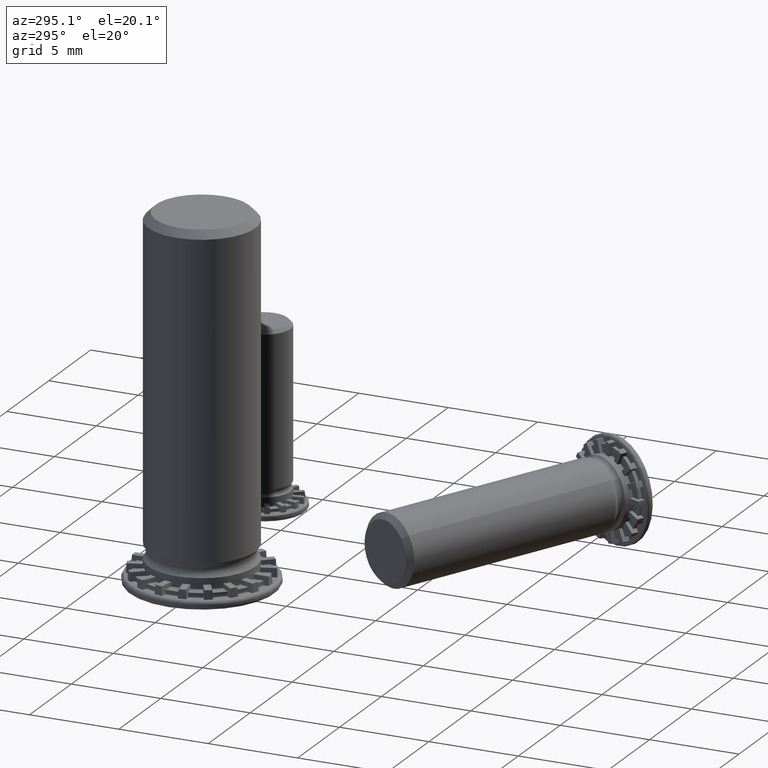
[diagram: clean part render]
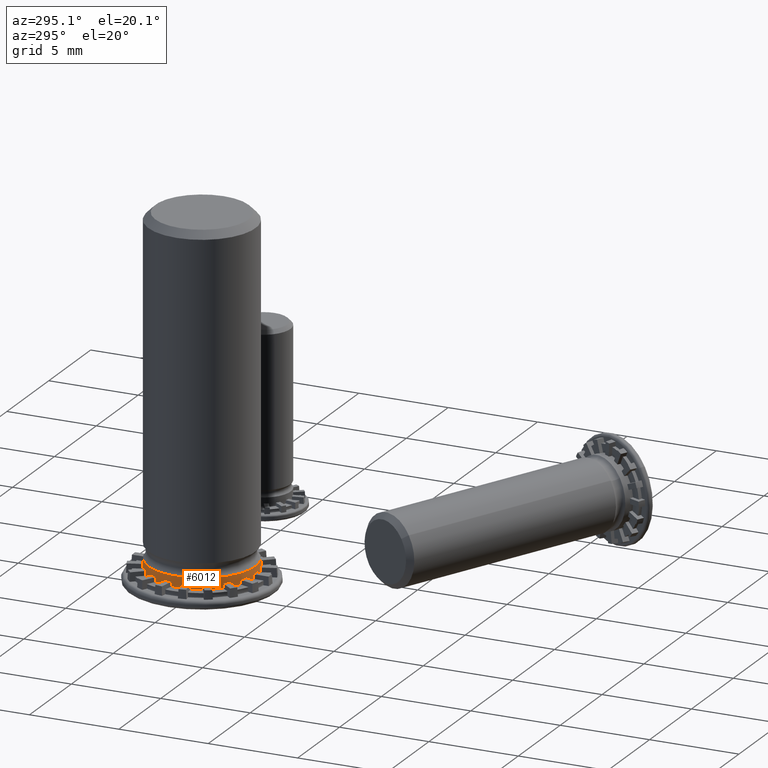
[diagram: same view with one face highlighted and labeled with its STEP entity id]
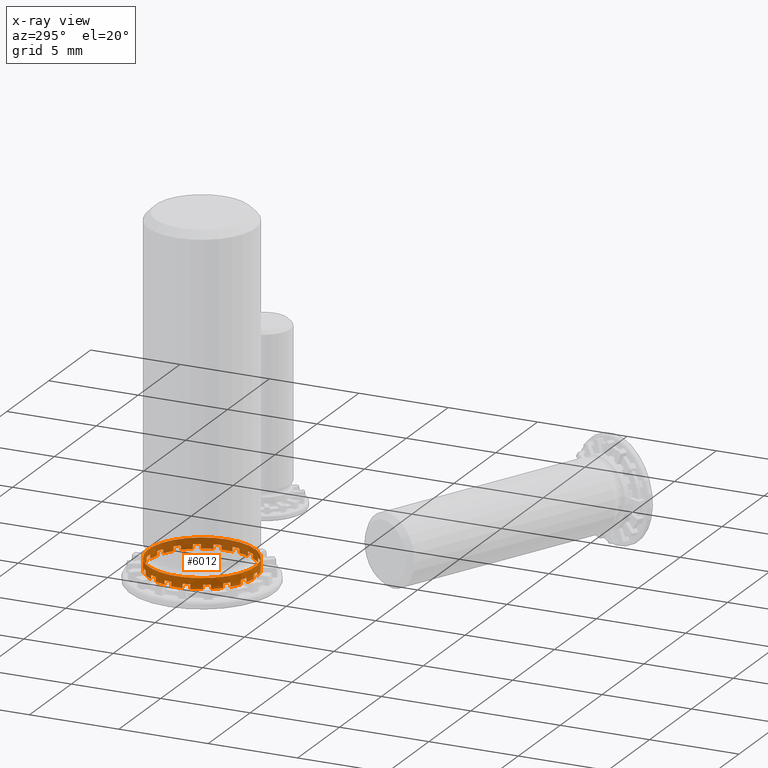
[diagram: x-ray of the same camera — body ghosted, the highlighted face saturated]
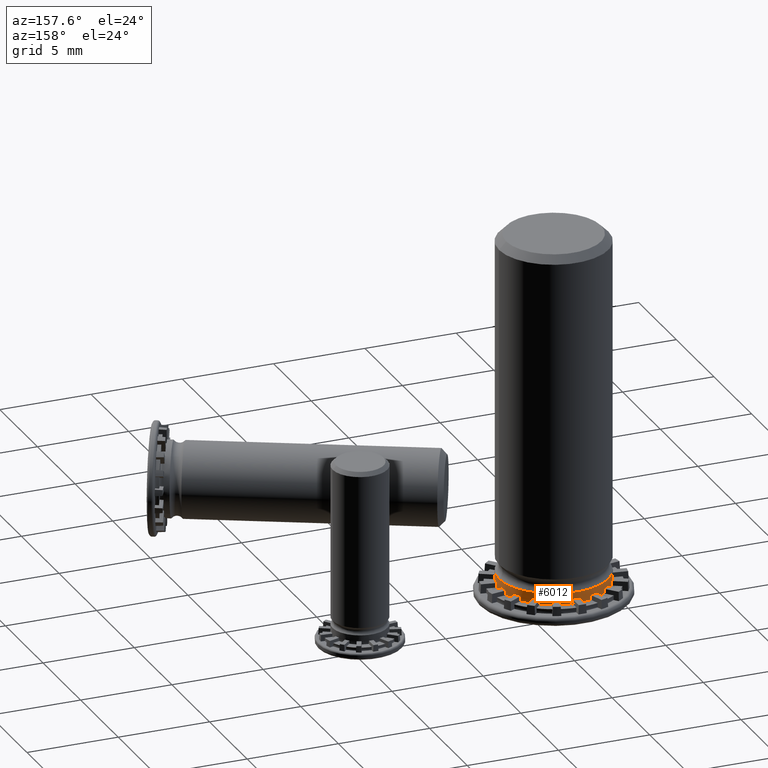
[diagram: same view with one face highlighted and labeled with its STEP entity id]
A machine part, auxiliary view. The second image highlights one B-rep face of the part: STEP entity #6012.
The next image is the same camera in x-ray: the body ghosted, the highlighted face saturated — about 39% of this face is hidden behind the body in this view.
A second angle (auxiliary view) of the same face is appended — the face is thin or edge-on in the first view.
In plain terms, the highlighted cylindrical surface (bore or boss wall) has radius 3 mm, axis along (0, 0, -1).
Its self-contained STEP definition (entity closure, byte-faithful):
#63=FACE_BOUND('',#1170,.T.);
#127=CYLINDRICAL_SURFACE('',#6859,3.);
#340=CIRCLE('',#6590,3.);
#343=CIRCLE('',#6601,3.);
#346=CIRCLE('',#6612,3.);
#349=CIRCLE('',#6623,3.);
#352=CIRCLE('',#6634,3.);
#355=CIRCLE('',#6645,3.);
#358=CIRCLE('',#6656,3.);
#361=CIRCLE('',#6667,3.);
#364=CIRCLE('',#6678,3.);
#367=CIRCLE('',#6689,3.);
#370=CIRCLE('',#6700,3.);
#373=CIRCLE('',#6711,3.);
#376=CIRCLE('',#6722,3.);
#379=CIRCLE('',#6733,3.);
#382=CIRCLE('',#6744,3.);
#385=CIRCLE('',#6755,3.);
#388=CIRCLE('',#6766,3.);
#425=CIRCLE('',#6824,3.);
#426=CIRCLE('',#6826,3.);
#427=CIRCLE('',#6828,3.);
#428=CIRCLE('',#6830,3.);
#429=CIRCLE('',#6832,3.);
#430=CIRCLE('',#6834,3.);
#431=CIRCLE('',#6836,3.);
#432=CIRCLE('',#6838,3.);
#433=CIRCLE('',#6840,3.);
#434=CIRCLE('',#6842,3.);
#435=CIRCLE('',#6844,3.);
#436=CIRCLE('',#6846,3.);
#437=CIRCLE('',#6848,3.);
#438=CIRCLE('',#6850,3.);
#439=CIRCLE('',#6852,3.);
#440=CIRCLE('',#6854,3.);
#441=CIRCLE('',#6856,3.);
#442=CIRCLE('',#6858,3.);
#443=CIRCLE('',#6860,3.);
#444=CIRCLE('',#6862,3.);
#823=FACE_OUTER_BOUND('',#1169,.T.);
#1169=EDGE_LOOP('',(#5307));
#1170=EDGE_LOOP('',(#5308,#5309,#5310,#5311,#5312,#5313,#5314,#5315,#5316,
#5317,#5318,#5319,#5320,#5321,#5322,#5323,#5324,#5325,#5326,#5327,#5328,
#5329,#5330,#5331,#5332,#5333,#5334,#5335,#5336,#5337,#5338,#5339,#5340,
#5341,#5342,#5343,#5344,#5345,#5346,#5347,#5348,#5349,#5350,#5351,#5352,
#5353,#5354,#5355,#5356,#5357,#5358,#5359,#5360,#5361,#5362,#5363,#5364,
#5365,#5366,#5367,#5368,#5369,#5370,#5371,#5372,#5373,#5374,#5375,#5376,
#5377,#5378,#5379));
#1319=ELLIPSE('',#6581,57.3219678278921,3.);
#1322=ELLIPSE('',#6588,57.3219678278927,3.);
#1323=ELLIPSE('',#6592,57.3219678278921,3.);
#1326=ELLIPSE('',#6599,57.3219678278927,3.);
#1327=ELLIPSE('',#6603,57.3219678278922,3.);
#1330=ELLIPSE('',#6610,57.3219678278926,3.);
#1331=ELLIPSE('',#6614,57.3219678278923,3.);
#1334=ELLIPSE('',#6621,57.3219678278925,3.);
#1335=ELLIPSE('',#6625,57.3219678278925,3.);
#1338=ELLIPSE('',#6632,57.3219678278923,3.);
#1339=ELLIPSE('',#6636,57.3219678278926,3.);
#1342=ELLIPSE('',#6643,57.3219678278922,3.);
#1343=ELLIPSE('',#6647,57.3219678278927,3.);
#1346=ELLIPSE('',#6654,57.3219678278921,3.);
#1347=ELLIPSE('',#6658,57.3219678278927,3.);
#1350=ELLIPSE('',#6665,57.3219678278921,3.);
#1351=ELLIPSE('',#6669,57.3219678278927,3.);
#1354=ELLIPSE('',#6676,57.3219678278921,3.);
#1355=ELLIPSE('',#6680,57.3219678278927,3.);
#1358=ELLIPSE('',#6687,57.3219678278921,3.);
#1359=ELLIPSE('',#6691,57.3219678278927,3.);
#1362=ELLIPSE('',#6698,57.3219678278921,3.);
#1363=ELLIPSE('',#6702,57.3219678278926,3.);
#1366=ELLIPSE('',#6709,57.3219678278922,3.);
#1367=ELLIPSE('',#6713,57.3219678278925,3.);
#1370=ELLIPSE('',#6720,57.3219678278923,3.);
#1371=ELLIPSE('',#6724,57.3219678278923,3.);
#1374=ELLIPSE('',#6731,57.3219678278925,3.);
#1375=ELLIPSE('',#6735,57.3219678278922,3.);
#1378=ELLIPSE('',#6742,57.3219678278926,3.);
#1379=ELLIPSE('',#6746,57.3219678278921,3.);
#1382=ELLIPSE('',#6753,57.3219678278927,3.);
#1383=ELLIPSE('',#6757,57.3219678278921,3.);
#1386=ELLIPSE('',#6764,57.3219678278927,3.);
#1389=ELLIPSE('',#6861,57.3219678278921,3.);
#1390=ELLIPSE('',#6863,57.3219678278927,3.);
#2494=VERTEX_POINT('',#10255);
#2495=VERTEX_POINT('',#10257);
#2501=VERTEX_POINT('',#10275);
#2502=VERTEX_POINT('',#10277);
#2506=VERTEX_POINT('',#10290);
#2507=VERTEX_POINT('',#10292);
#2513=VERTEX_POINT('',#10310);
#2514=VERTEX_POINT('',#10312);
#2518=VERTEX_POINT('',#10325);
#2519=VERTEX_POINT('',#10327);
#2525=VERTEX_POINT('',#10345);
#2526=VERTEX_POINT('',#10347);
#2530=VERTEX_POINT('',#10360);
#2531=VERTEX_POINT('',#10362);
#2537=VERTEX_POINT('',#10380);
#2538=VERTEX_POINT('',#10382);
#2542=VERTEX_POINT('',#10395);
#2543=VERTEX_POINT('',#10397);
#2549=VERTEX_POINT('',#10415);
#2550=VERTEX_POINT('',#10417);
#2554=VERTEX_POINT('',#10430);
#2555=VERTEX_POINT('',#10432);
#2561=VERTEX_POINT('',#10450);
#2562=VERTEX_POINT('',#10452);
#2566=VERTEX_POINT('',#10465);
#2567=VERTEX_POINT('',#10467);
#2573=VERTEX_POINT('',#10485);
#2574=VERTEX_POINT('',#10487);
#2578=VERTEX_POINT('',#10500);
#2579=VERTEX_POINT('',#10502);
#2585=VERTEX_POINT('',#10520);
#2586=VERTEX_POINT('',#10522);
#2590=VERTEX_POINT('',#10535);
#2591=VERTEX_POINT('',#10537);
#2597=VERTEX_POINT('',#10555);
#2598=VERTEX_POINT('',#10557);
#2602=VERTEX_POINT('',#10570);
#2603=VERTEX_POINT('',#10572);
#2609=VERTEX_POINT('',#10590);
#2610=VERTEX_POINT('',#10592);
#2614=VERTEX_POINT('',#10605);
#2615=VERTEX_POINT('',#10607);
#2621=VERTEX_POINT('',#10625);
#2622=VERTEX_POINT('',#10627);
#2626=VERTEX_POINT('',#10640);
#2627=VERTEX_POINT('',#10642);
#2633=VERTEX_POINT('',#10660);
#2634=VERTEX_POINT('',#10662);
#2638=VERTEX_POINT('',#10675);
#2639=VERTEX_POINT('',#10677);
#2645=VERTEX_POINT('',#10695);
#2646=VERTEX_POINT('',#10697);
#2650=VERTEX_POINT('',#10710);
#2651=VERTEX_POINT('',#10712);
#2657=VERTEX_POINT('',#10730);
#2658=VERTEX_POINT('',#10732);
#2662=VERTEX_POINT('',#10745);
#2663=VERTEX_POINT('',#10747);
#2669=VERTEX_POINT('',#10765);
#2670=VERTEX_POINT('',#10767);
#2674=VERTEX_POINT('',#10780);
#2675=VERTEX_POINT('',#10782);
#2681=VERTEX_POINT('',#10800);
#2682=VERTEX_POINT('',#10802);
#2686=VERTEX_POINT('',#10815);
#2687=VERTEX_POINT('',#10817);
#2693=VERTEX_POINT('',#10835);
#2694=VERTEX_POINT('',#10837);
#2699=VERTEX_POINT('',#10903);
#2700=VERTEX_POINT('',#10937);
#2701=VERTEX_POINT('',#10943);
#2702=VERTEX_POINT('',#10945);
#2703=VERTEX_POINT('',#10947);
#3310=EDGE_CURVE('',#2495,#2494,#1319,.T.);
#3319=EDGE_CURVE('',#2502,#2501,#1322,.T.);
#3321=EDGE_CURVE('',#2494,#2502,#340,.T.);
#3325=EDGE_CURVE('',#2507,#2506,#1323,.T.);
#3334=EDGE_CURVE('',#2514,#2513,#1326,.T.);
#3336=EDGE_CURVE('',#2506,#2514,#343,.T.);
#3340=EDGE_CURVE('',#2519,#2518,#1327,.T.);
#3349=EDGE_CURVE('',#2526,#2525,#1330,.T.);
#3351=EDGE_CURVE('',#2518,#2526,#346,.T.);
#3355=EDGE_CURVE('',#2531,#2530,#1331,.T.);
#3364=EDGE_CURVE('',#2538,#2537,#1334,.T.);
#3366=EDGE_CURVE('',#2530,#2538,#349,.T.);
#3370=EDGE_CURVE('',#2543,#2542,#1335,.T.);
#3379=EDGE_CURVE('',#2550,#2549,#1338,.T.);
#3381=EDGE_CURVE('',#2542,#2550,#352,.T.);
#3385=EDGE_CURVE('',#2555,#2554,#1339,.T.);
#3394=EDGE_CURVE('',#2562,#2561,#1342,.T.);
#3396=EDGE_CURVE('',#2554,#2562,#355,.T.);
#3400=EDGE_CURVE('',#2567,#2566,#1343,.T.);
#3409=EDGE_CURVE('',#2574,#2573,#1346,.T.);
#3411=EDGE_CURVE('',#2566,#2574,#358,.T.);
#3415=EDGE_CURVE('',#2579,#2578,#1347,.T.);
#3424=EDGE_CURVE('',#2586,#2585,#1350,.T.);
#3426=EDGE_CURVE('',#2578,#2586,#361,.T.);
#3430=EDGE_CURVE('',#2591,#2590,#1351,.T.);
#3439=EDGE_CURVE('',#2598,#2597,#1354,.T.);
#3441=EDGE_CURVE('',#2590,#2598,#364,.T.);
#3445=EDGE_CURVE('',#2603,#2602,#1355,.T.);
#3454=EDGE_CURVE('',#2610,#2609,#1358,.T.);
#3456=EDGE_CURVE('',#2602,#2610,#367,.T.);
#3460=EDGE_CURVE('',#2615,#2614,#1359,.T.);
#3469=EDGE_CURVE('',#2622,#2621,#1362,.T.);
#3471=EDGE_CURVE('',#2614,#2622,#370,.T.);
#3475=EDGE_CURVE('',#2627,#2626,#1363,.T.);
#3484=EDGE_CURVE('',#2634,#2633,#1366,.T.);
#3486=EDGE_CURVE('',#2626,#2634,#373,.T.);
#3490=EDGE_CURVE('',#2639,#2638,#1367,.T.);
#3499=EDGE_CURVE('',#2646,#2645,#1370,.T.);
#3501=EDGE_CURVE('',#2638,#2646,#376,.T.);
#3505=EDGE_CURVE('',#2651,#2650,#1371,.T.);
#3514=EDGE_CURVE('',#2658,#2657,#1374,.T.);
#3516=EDGE_CURVE('',#2650,#2658,#379,.T.);
#3520=EDGE_CURVE('',#2663,#2662,#1375,.T.);
#3529=EDGE_CURVE('',#2670,#2669,#1378,.T.);
#3531=EDGE_CURVE('',#2662,#2670,#382,.T.);
#3535=EDGE_CURVE('',#2675,#2674,#1379,.T.);
#3544=EDGE_CURVE('',#2682,#2681,#1382,.T.);
#3546=EDGE_CURVE('',#2674,#2682,#385,.T.);
#3550=EDGE_CURVE('',#2687,#2686,#1383,.T.);
#3559=EDGE_CURVE('',#2694,#2693,#1386,.T.);
#3561=EDGE_CURVE('',#2686,#2694,#388,.T.);
#3600=EDGE_CURVE('',#2687,#2699,#425,.T.);
#3602=EDGE_CURVE('',#2675,#2693,#426,.T.);
#3603=EDGE_CURVE('',#2663,#2681,#427,.T.);
#3604=EDGE_CURVE('',#2651,#2669,#428,.T.);
#3605=EDGE_CURVE('',#2639,#2657,#429,.T.);
#3606=EDGE_CURVE('',#2627,#2645,#430,.T.);
#3607=EDGE_CURVE('',#2615,#2633,#431,.T.);
#3608=EDGE_CURVE('',#2603,#2621,#432,.T.);
#3609=EDGE_CURVE('',#2591,#2609,#433,.T.);
#3610=EDGE_CURVE('',#2579,#2597,#434,.T.);
#3611=EDGE_CURVE('',#2567,#2585,#435,.T.);
#3612=EDGE_CURVE('',#2555,#2573,#436,.T.);
#3613=EDGE_CURVE('',#2543,#2561,#437,.T.);
#3614=EDGE_CURVE('',#2531,#2549,#438,.T.);
#3615=EDGE_CURVE('',#2519,#2537,#439,.T.);
#3616=EDGE_CURVE('',#2507,#2525,#440,.T.);
#3618=EDGE_CURVE('',#2700,#2501,#441,.T.);
#3619=EDGE_CURVE('',#2495,#2513,#442,.T.);
#3620=EDGE_CURVE('',#2701,#2701,#443,.T.);
#3621=EDGE_CURVE('',#2700,#2702,#1389,.T.);
#3622=EDGE_CURVE('',#2702,#2703,#444,.T.);
#3623=EDGE_CURVE('',#2703,#2699,#1390,.T.);
#5307=ORIENTED_EDGE('',*,*,#3620,.T.);
#5308=ORIENTED_EDGE('',*,*,#3614,.F.);
#5309=ORIENTED_EDGE('',*,*,#3355,.T.);
#5310=ORIENTED_EDGE('',*,*,#3366,.T.);
#5311=ORIENTED_EDGE('',*,*,#3364,.T.);
#5312=ORIENTED_EDGE('',*,*,#3615,.F.);
#5313=ORIENTED_EDGE('',*,*,#3340,.T.);
#5314=ORIENTED_EDGE('',*,*,#3351,.T.);
#5315=ORIENTED_EDGE('',*,*,#3349,.T.);
#5316=ORIENTED_EDGE('',*,*,#3616,.F.);
#5317=ORIENTED_EDGE('',*,*,#3325,.T.);
#5318=ORIENTED_EDGE('',*,*,#3336,.T.);
#5319=ORIENTED_EDGE('',*,*,#3334,.T.);
#5320=ORIENTED_EDGE('',*,*,#3619,.F.);
#5321=ORIENTED_EDGE('',*,*,#3310,.T.);
#5322=ORIENTED_EDGE('',*,*,#3321,.T.);
#5323=ORIENTED_EDGE('',*,*,#3319,.T.);
#5324=ORIENTED_EDGE('',*,*,#3618,.F.);
#5325=ORIENTED_EDGE('',*,*,#3621,.T.);
#5326=ORIENTED_EDGE('',*,*,#3622,.T.);
#5327=ORIENTED_EDGE('',*,*,#3623,.T.);
#5328=ORIENTED_EDGE('',*,*,#3600,.F.);
#5329=ORIENTED_EDGE('',*,*,#3550,.T.);
#5330=ORIENTED_EDGE('',*,*,#3561,.T.);
#5331=ORIENTED_EDGE('',*,*,#3559,.T.);
#5332=ORIENTED_EDGE('',*,*,#3602,.F.);
#5333=ORIENTED_EDGE('',*,*,#3535,.T.);
#5334=ORIENTED_EDGE('',*,*,#3546,.T.);
#5335=ORIENTED_EDGE('',*,*,#3544,.T.);
#5336=ORIENTED_EDGE('',*,*,#3603,.F.);
#5337=ORIENTED_EDGE('',*,*,#3520,.T.);
#5338=ORIENTED_EDGE('',*,*,#3531,.T.);
#5339=ORIENTED_EDGE('',*,*,#3529,.T.);
#5340=ORIENTED_EDGE('',*,*,#3604,.F.);
#5341=ORIENTED_EDGE('',*,*,#3505,.T.);
#5342=ORIENTED_EDGE('',*,*,#3516,.T.);
#5343=ORIENTED_EDGE('',*,*,#3514,.T.);
#5344=ORIENTED_EDGE('',*,*,#3605,.F.);
#5345=ORIENTED_EDGE('',*,*,#3490,.T.);
#5346=ORIENTED_EDGE('',*,*,#3501,.T.);
#5347=ORIENTED_EDGE('',*,*,#3499,.T.);
#5348=ORIENTED_EDGE('',*,*,#3606,.F.);
#5349=ORIENTED_EDGE('',*,*,#3475,.T.);
#5350=ORIENTED_EDGE('',*,*,#3486,.T.);
#5351=ORIENTED_EDGE('',*,*,#3484,.T.);
#5352=ORIENTED_EDGE('',*,*,#3607,.F.);
#5353=ORIENTED_EDGE('',*,*,#3460,.T.);
#5354=ORIENTED_EDGE('',*,*,#3471,.T.);
#5355=ORIENTED_EDGE('',*,*,#3469,.T.);
#5356=ORIENTED_EDGE('',*,*,#3608,.F.);
#5357=ORIENTED_EDGE('',*,*,#3445,.T.);
#5358=ORIENTED_EDGE('',*,*,#3456,.T.);
#5359=ORIENTED_EDGE('',*,*,#3454,.T.);
#5360=ORIENTED_EDGE('',*,*,#3609,.F.);
#5361=ORIENTED_EDGE('',*,*,#3430,.T.);
#5362=ORIENTED_EDGE('',*,*,#3441,.T.);
#5363=ORIENTED_EDGE('',*,*,#3439,.T.);
#5364=ORIENTED_EDGE('',*,*,#3610,.F.);
#5365=ORIENTED_EDGE('',*,*,#3415,.T.);
#5366=ORIENTED_EDGE('',*,*,#3426,.T.);
#5367=ORIENTED_EDGE('',*,*,#3424,.T.);
#5368=ORIENTED_EDGE('',*,*,#3611,.F.);
#5369=ORIENTED_EDGE('',*,*,#3400,.T.);
#5370=ORIENTED_EDGE('',*,*,#3411,.T.);
#5371=ORIENTED_EDGE('',*,*,#3409,.T.);
#5372=ORIENTED_EDGE('',*,*,#3612,.F.);
#5373=ORIENTED_EDGE('',*,*,#3385,.T.);
#5374=ORIENTED_EDGE('',*,*,#3396,.T.);
#5375=ORIENTED_EDGE('',*,*,#3394,.T.);
#5376=ORIENTED_EDGE('',*,*,#3613,.F.);
#5377=ORIENTED_EDGE('',*,*,#3370,.T.);
#5378=ORIENTED_EDGE('',*,*,#3381,.T.);
#5379=ORIENTED_EDGE('',*,*,#3379,.T.);
#6012=ADVANCED_FACE('',(#823,#63),#127,.T.);
#6581=AXIS2_PLACEMENT_3D('',#10258,#8188,#8189);
#6588=AXIS2_PLACEMENT_3D('',#10278,#8205,#8206);
#6590=AXIS2_PLACEMENT_3D('',#10281,#8210,#8211);
#6592=AXIS2_PLACEMENT_3D('',#10293,#8216,#8217);
#6599=AXIS2_PLACEMENT_3D('',#10313,#8233,#8234);
#6601=AXIS2_PLACEMENT_3D('',#10316,#8238,#8239);
#6603=AXIS2_PLACEMENT_3D('',#10328,#8244,#8245);
#6610=AXIS2_PLACEMENT_3D('',#10348,#8261,#8262);
#6612=AXIS2_PLACEMENT_3D('',#10351,#8266,#8267);
#6614=AXIS2_PLACEMENT_3D('',#10363,#8272,#8273);
#6621=AXIS2_PLACEMENT_3D('',#10383,#8289,#8290);
#6623=AXIS2_PLACEMENT_3D('',#10386,#8294,#8295);
#6625=AXIS2_PLACEMENT_3D('',#10398,#8300,#8301);
#6632=AXIS2_PLACEMENT_3D('',#10418,#8317,#8318);
#6634=AXIS2_PLACEMENT_3D('',#10421,#8322,#8323);
#6636=AXIS2_PLACEMENT_3D('',#10433,#8328,#8329);
#6643=AXIS2_PLACEMENT_3D('',#10453,#8345,#8346);
#6645=AXIS2_PLACEMENT_3D('',#10456,#8350,#8351);
#6647=AXIS2_PLACEMENT_3D('',#10468,#8356,#8357);
#6654=AXIS2_PLACEMENT_3D('',#10488,#8373,#8374);
#6656=AXIS2_PLACEMENT_3D('',#10491,#8378,#8379);
#6658=AXIS2_PLACEMENT_3D('',#10503,#8384,#8385);
#6665=AXIS2_PLACEMENT_3D('',#10523,#8401,#8402);
#6667=AXIS2_PLACEMENT_3D('',#10526,#8406,#8407);
#6669=AXIS2_PLACEMENT_3D('',#10538,#8412,#8413);
#6676=AXIS2_PLACEMENT_3D('',#10558,#8429,#8430);
#6678=AXIS2_PLACEMENT_3D('',#10561,#8434,#8435);
#6680=AXIS2_PLACEMENT_3D('',#10573,#8440,#8441);
#6687=AXIS2_PLACEMENT_3D('',#10593,#8457,#8458);
#6689=AXIS2_PLACEMENT_3D('',#10596,#8462,#8463);
#6691=AXIS2_PLACEMENT_3D('',#10608,#8468,#8469);
#6698=AXIS2_PLACEMENT_3D('',#10628,#8485,#8486);
#6700=AXIS2_PLACEMENT_3D('',#10631,#8490,#8491);
#6702=AXIS2_PLACEMENT_3D('',#10643,#8496,#8497);
#6709=AXIS2_PLACEMENT_3D('',#10663,#8513,#8514);
#6711=AXIS2_PLACEMENT_3D('',#10666,#8518,#8519);
#6713=AXIS2_PLACEMENT_3D('',#10678,#8524,#8525);
#6720=AXIS2_PLACEMENT_3D('',#10698,#8541,#8542);
#6722=AXIS2_PLACEMENT_3D('',#10701,#8546,#8547);
#6724=AXIS2_PLACEMENT_3D('',#10713,#8552,#8553);
#6731=AXIS2_PLACEMENT_3D('',#10733,#8569,#8570);
#6733=AXIS2_PLACEMENT_3D('',#10736,#8574,#8575);
#6735=AXIS2_PLACEMENT_3D('',#10748,#8580,#8581);
#6742=AXIS2_PLACEMENT_3D('',#10768,#8597,#8598);
#6744=AXIS2_PLACEMENT_3D('',#10771,#8602,#8603);
#6746=AXIS2_PLACEMENT_3D('',#10783,#8608,#8609);
#6753=AXIS2_PLACEMENT_3D('',#10803,#8625,#8626);
#6755=AXIS2_PLACEMENT_3D('',#10806,#8630,#8631);
#6757=AXIS2_PLACEMENT_3D('',#10818,#8636,#8637);
#6764=AXIS2_PLACEMENT_3D('',#10838,#8653,#8654);
#6766=AXIS2_PLACEMENT_3D('',#10841,#8658,#8659);
#6824=AXIS2_PLACEMENT_3D('',#10904,#8774,#8775);
#6826=AXIS2_PLACEMENT_3D('',#10907,#8779,#8780);
#6828=AXIS2_PLACEMENT_3D('',#10909,#8783,#8784);
#6830=AXIS2_PLACEMENT_3D('',#10911,#8787,#8788);
#6832=AXIS2_PLACEMENT_3D('',#10913,#8791,#8792);
#6834=AXIS2_PLACEMENT_3D('',#10915,#8795,#8796);
#6836=AXIS2_PLACEMENT_3D('',#10917,#8799,#8800);
#6838=AXIS2_PLACEMENT_3D('',#10919,#8803,#8804);
#6840=AXIS2_PLACEMENT_3D('',#10921,#8807,#8808);
#6842=AXIS2_PLACEMENT_3D('',#10923,#8811,#8812);
#6844=AXIS2_PLACEMENT_3D('',#10925,#8815,#8816);
#6846=AXIS2_PLACEMENT_3D('',#10927,#8819,#8820);
#6848=AXIS2_PLACEMENT_3D('',#10929,#8823,#8824);
#6850=AXIS2_PLACEMENT_3D('',#10931,#8827,#8828);
#6852=AXIS2_PLACEMENT_3D('',#10933,#8831,#8832);
#6854=AXIS2_PLACEMENT_3D('',#10935,#8835,#8836);
#6856=AXIS2_PLACEMENT_3D('',#10939,#8840,#8841);
#6858=AXIS2_PLACEMENT_3D('',#10941,#8844,#8845);
#6859=AXIS2_PLACEMENT_3D('',#10942,#8846,#8847);
#6860=AXIS2_PLACEMENT_3D('',#10944,#8848,#8849);
#6861=AXIS2_PLACEMENT_3D('',#10946,#8850,#8851);
#6862=AXIS2_PLACEMENT_3D('',#10948,#8852,#8853);
#6863=AXIS2_PLACEMENT_3D('',#10949,#8854,#8855);
#8188=DIRECTION('center_axis',(0.938404804707738,-0.341551416606006,0.0523359562429437));
#8189=DIRECTION('ref_axis',(-0.0491797118832683,0.0178999512552977,0.998629534754574));
#8205=DIRECTION('center_axis',(-0.938404804707738,0.341551416606006,0.0523359562429437));
#8206=DIRECTION('ref_axis',(-0.0491797118832684,0.0178999512552975,-0.998629534754574));
#8210=DIRECTION('center_axis',(-1.93138508711091E-31,-1.62986697235477E-31,
1.));
#8211=DIRECTION('ref_axis',(-1.,3.14790076438061E-62,-1.93138508711091E-31));
#8216=DIRECTION('center_axis',(0.764994605833232,-0.641906691607274,0.0523359562429437));
#8217=DIRECTION('ref_axis',(-0.0400916684552248,0.0336409042140612,0.998629534754574));
#8233=DIRECTION('center_axis',(-0.764994605833232,0.641906691607274,0.0523359562429437));
#8234=DIRECTION('ref_axis',(-0.0400916684552251,0.0336409042140609,-0.998629534754574));
#8238=DIRECTION('center_axis',(-2.37235564974062E-31,-8.71001362473712E-32,
1.));
#8239=DIRECTION('ref_axis',(-1.,2.06632500319629E-62,-2.37235564974062E-31));
#8244=DIRECTION('center_axis',(0.499314767377287,-0.864838546066896,0.0523359562429437));
#8245=DIRECTION('ref_axis',(-0.0261679781214716,0.0453242676377402,0.998629534754574));
#8261=DIRECTION('center_axis',(-0.499314767377287,0.864838546066896,0.0523359562429437));
#8262=DIRECTION('ref_axis',(-0.0261679781214721,0.0453242676377399,-0.998629534754574));
#8266=DIRECTION('center_axis',(-2.52718510877113E-31,-7.08013366727255E-34,
1.));
#8267=DIRECTION('ref_axis',(-1.,1.78928083720403E-64,-2.52718510877113E-31));
#8272=DIRECTION('center_axis',(0.173410198874506,-0.983458108213279,0.0523359562429437));
#8273=DIRECTION('ref_axis',(-0.00908804342804305,0.0515408554693587,0.998629534754574));
#8289=DIRECTION('center_axis',(-0.173410198874506,0.983458108213279,0.0523359562429437));
#8290=DIRECTION('ref_axis',(-0.00908804342804366,0.0515408554693586,-0.998629534754574));
#8294=DIRECTION('center_axis',(-2.37719874640391E-31,8.57695063751086E-32,
1.));
#8295=DIRECTION('ref_axis',(-1.,-2.0389116303459E-62,-2.37719874640391E-31));
#8300=DIRECTION('center_axis',(-0.173410198874506,-0.983458108213279,0.0523359562429437));
#8301=DIRECTION('ref_axis',(-0.00908804342804368,-0.0515408554693585,-0.998629534754574));
#8317=DIRECTION('center_axis',(0.173410198874506,0.983458108213279,0.0523359562429437));
#8318=DIRECTION('ref_axis',(-0.00908804342804308,-0.0515408554693587,0.998629534754574));
#8322=DIRECTION('center_axis',(-1.9404871315034E-31,1.61901957825006E-31,
1.));
#8323=DIRECTION('ref_axis',(-1.,-3.1416866572463E-62,-1.9404871315034E-31));
#8328=DIRECTION('center_axis',(-0.499314767377287,-0.864838546066896,0.0523359562429437));
#8329=DIRECTION('ref_axis',(-0.0261679781214721,-0.0453242676377399,-0.998629534754574));
#8345=DIRECTION('center_axis',(0.499314767377287,0.864838546066896,0.0523359562429437));
#8346=DIRECTION('ref_axis',(-0.0261679781214716,-0.0453242676377402,0.998629534754574));
#8350=DIRECTION('center_axis',(-1.26972413000361E-31,2.18506643742791E-31,
1.));
#8351=DIRECTION('ref_axis',(-1.,-2.77443158126324E-62,-1.26972413000361E-31));
#8356=DIRECTION('center_axis',(-0.764994605833232,-0.641906691607273,0.0523359562429437));
#8357=DIRECTION('ref_axis',(-0.0400916684552251,-0.0336409042140609,-0.998629534754574));
#8373=DIRECTION('center_axis',(0.764994605833232,0.641906691607273,0.0523359562429437));
#8374=DIRECTION('ref_axis',(-0.0400916684552249,-0.0336409042140612,0.998629534754574));
#8378=DIRECTION('center_axis',(-4.45813659293003E-32,2.48756203610585E-31,
1.));
#8379=DIRECTION('ref_axis',(-1.,-1.1089891340347E-62,-4.45813659293003E-32));
#8384=DIRECTION('center_axis',(-0.938404804707738,-0.341551416606005,0.0523359562429437));
#8385=DIRECTION('ref_axis',(-0.0491797118832684,-0.0178999512552974,-0.998629534754574));
#8401=DIRECTION('center_axis',(0.938404804707738,0.341551416606005,0.0523359562429437));
#8402=DIRECTION('ref_axis',(-0.0491797118832684,-0.0178999512552976,0.998629534754574));
#8406=DIRECTION('center_axis',(4.31868518237218E-32,2.49002094072377E-31,
1.));
#8407=DIRECTION('ref_axis',(-1.,1.07536165405002E-62,4.31868518237218E-32));
#8412=DIRECTION('center_axis',(-0.998629534754574,1.11022302462516E-16,
0.0523359562429437));
#8413=DIRECTION('ref_axis',(-0.0523359562429437,0.,-0.998629534754574));
#8429=DIRECTION('center_axis',(0.998629534754574,-1.11022302462516E-16,
0.0523359562429437));
#8430=DIRECTION('ref_axis',(-0.0523359562429437,0.,0.998629534754574));
#8434=DIRECTION('center_axis',(1.25746097876752E-31,2.19214657109518E-31,
1.));
#8435=DIRECTION('ref_axis',(-1.,2.75653877289121E-62,1.25746097876752E-31));
#8440=DIRECTION('center_axis',(-0.938404804707738,0.341551416606005,0.0523359562429437));
#8441=DIRECTION('ref_axis',(-0.0491797118832684,0.0178999512552974,-0.998629534754574));
#8457=DIRECTION('center_axis',(0.938404804707738,-0.341551416606005,0.0523359562429437));
#8458=DIRECTION('ref_axis',(-0.0491797118832684,0.0178999512552976,0.998629534754574));
#8462=DIRECTION('center_axis',(1.93138508711091E-31,1.62986697235477E-31,
1.));
#8463=DIRECTION('ref_axis',(-1.,3.14790076438061E-62,1.93138508711091E-31));
#8468=DIRECTION('center_axis',(-0.764994605833232,0.641906691607274,0.0523359562429437));
#8469=DIRECTION('ref_axis',(-0.0400916684552251,0.0336409042140609,-0.998629534754574));
#8485=DIRECTION('center_axis',(0.764994605833232,-0.641906691607274,0.0523359562429437));
#8486=DIRECTION('ref_axis',(-0.0400916684552248,0.0336409042140612,0.998629534754574));
#8490=DIRECTION('center_axis',(2.37235564974062E-31,8.71001362473712E-32,
1.));
#8491=DIRECTION('ref_axis',(-1.,2.06632500319629E-62,2.37235564974062E-31));
#8496=DIRECTION('center_axis',(-0.499314767377287,0.864838546066896,0.0523359562429437));
#8497=DIRECTION('ref_axis',(-0.026167978121472,0.0453242676377399,-0.998629534754574));
#8513=DIRECTION('center_axis',(0.499314767377287,-0.864838546066896,0.0523359562429437));
#8514=DIRECTION('ref_axis',(-0.0261679781214716,0.0453242676377402,0.998629534754574));
#8518=DIRECTION('center_axis',(2.52718510877113E-31,7.08013366727156E-34,
1.));
#8519=DIRECTION('ref_axis',(-1.,1.78928083720378E-64,2.52718510877113E-31));
#8524=DIRECTION('center_axis',(-0.173410198874506,0.983458108213279,0.0523359562429437));
#8525=DIRECTION('ref_axis',(-0.00908804342804368,0.0515408554693585,-0.998629534754574));
#8541=DIRECTION('center_axis',(0.173410198874506,-0.983458108213279,0.0523359562429437));
#8542=DIRECTION('ref_axis',(-0.00908804342804308,0.0515408554693587,0.998629534754574));
#8546=DIRECTION('center_axis',(2.37719874640391E-31,-8.57695063751086E-32,
1.));
#8547=DIRECTION('ref_axis',(-1.,-2.0389116303459E-62,2.37719874640391E-31));
#8552=DIRECTION('center_axis',(0.173410198874506,0.983458108213279,0.0523359562429437));
#8553=DIRECTION('ref_axis',(-0.00908804342804309,-0.0515408554693587,0.998629534754574));
#8569=DIRECTION('center_axis',(-0.173410198874506,-0.983458108213279,0.0523359562429437));
#8570=DIRECTION('ref_axis',(-0.00908804342804368,-0.0515408554693585,-0.998629534754574));
#8574=DIRECTION('center_axis',(1.9404871315034E-31,-1.61901957825006E-31,
1.));
#8575=DIRECTION('ref_axis',(-1.,-3.1416866572463E-62,1.9404871315034E-31));
#8580=DIRECTION('center_axis',(0.499314767377287,0.864838546066896,0.0523359562429437));
#8581=DIRECTION('ref_axis',(-0.0261679781214716,-0.0453242676377402,0.998629534754574));
#8597=DIRECTION('center_axis',(-0.499314767377287,-0.864838546066896,0.0523359562429437));
#8598=DIRECTION('ref_axis',(-0.0261679781214721,-0.0453242676377399,-0.998629534754574));
#8602=DIRECTION('center_axis',(1.26972413000361E-31,-2.18506643742791E-31,
1.));
#8603=DIRECTION('ref_axis',(-1.,-2.77443158126324E-62,1.26972413000361E-31));
#8608=DIRECTION('center_axis',(0.764994605833232,0.641906691607273,0.0523359562429437));
#8609=DIRECTION('ref_axis',(-0.0400916684552249,-0.0336409042140612,0.998629534754574));
#8625=DIRECTION('center_axis',(-0.764994605833232,-0.641906691607273,0.0523359562429437));
#8626=DIRECTION('ref_axis',(-0.0400916684552251,-0.0336409042140609,-0.998629534754574));
#8630=DIRECTION('center_axis',(4.45813659293003E-32,-2.48756203610585E-31,
1.));
#8631=DIRECTION('ref_axis',(-1.,-1.1089891340347E-62,4.45813659293003E-32));
#8636=DIRECTION('center_axis',(0.938404804707738,0.341551416606005,0.0523359562429437));
#8637=DIRECTION('ref_axis',(-0.0491797118832684,-0.0178999512552976,0.998629534754574));
#8653=DIRECTION('center_axis',(-0.938404804707738,-0.341551416606005,0.0523359562429437));
#8654=DIRECTION('ref_axis',(-0.0491797118832684,-0.0178999512552974,-0.998629534754574));
#8658=DIRECTION('center_axis',(-4.31868518237218E-32,-2.49002094072377E-31,
1.));
#8659=DIRECTION('ref_axis',(-1.,1.07536165405002E-62,-4.31868518237218E-32));
#8774=DIRECTION('center_axis',(-3.05311331771918E-16,0.,-1.));
#8775=DIRECTION('ref_axis',(-1.,0.,3.05311331771918E-16));
#8779=DIRECTION('center_axis',(-3.05311331771918E-16,0.,-1.));
#8780=DIRECTION('ref_axis',(-1.,0.,3.05311331771918E-16));
#8783=DIRECTION('center_axis',(-3.05311331771918E-16,0.,-1.));
#8784=DIRECTION('ref_axis',(-1.,0.,3.05311331771918E-16));
#8787=DIRECTION('center_axis',(-3.05311331771918E-16,0.,-1.));
#8788=DIRECTION('ref_axis',(-1.,0.,3.05311331771918E-16));
#8791=DIRECTION('center_axis',(-3.05311331771918E-16,0.,-1.));
#8792=DIRECTION('ref_axis',(-1.,0.,3.05311331771918E-16));
#8795=DIRECTION('center_axis',(-3.05311331771918E-16,0.,-1.));
#8796=DIRECTION('ref_axis',(-1.,0.,3.05311331771918E-16));
#8799=DIRECTION('center_axis',(-3.05311331771918E-16,0.,-1.));
#8800=DIRECTION('ref_axis',(-1.,0.,3.05311331771918E-16));
#8803=DIRECTION('center_axis',(-3.05311331771918E-16,0.,-1.));
#8804=DIRECTION('ref_axis',(-1.,0.,3.05311331771918E-16));
#8807=DIRECTION('center_axis',(-3.05311331771918E-16,0.,-1.));
#8808=DIRECTION('ref_axis',(-1.,0.,3.05311331771918E-16));
#8811=DIRECTION('center_axis',(-3.05311331771918E-16,0.,-1.));
#8812=DIRECTION('ref_axis',(-1.,0.,3.05311331771918E-16));
#8815=DIRECTION('center_axis',(-3.05311331771918E-16,0.,-1.));
#8816=DIRECTION('ref_axis',(-1.,0.,3.05311331771918E-16));
#8819=DIRECTION('center_axis',(-3.05311331771918E-16,0.,-1.));
#8820=DIRECTION('ref_axis',(-1.,0.,3.05311331771918E-16));
#8823=DIRECTION('center_axis',(-3.05311331771918E-16,0.,-1.));
#8824=DIRECTION('ref_axis',(-1.,0.,3.05311331771918E-16));
#8827=DIRECTION('center_axis',(-3.05311331771918E-16,0.,-1.));
#8828=DIRECTION('ref_axis',(-1.,0.,3.05311331771918E-16));
#8831=DIRECTION('center_axis',(-3.05311331771918E-16,0.,-1.));
#8832=DIRECTION('ref_axis',(-1.,0.,3.05311331771918E-16));
#8835=DIRECTION('center_axis',(-3.05311331771918E-16,0.,-1.));
#8836=DIRECTION('ref_axis',(-1.,0.,3.05311331771918E-16));
#8840=DIRECTION('center_axis',(-3.05311331771918E-16,0.,-1.));
#8841=DIRECTION('ref_axis',(-1.,0.,3.05311331771918E-16));
#8844=DIRECTION('center_axis',(-3.05311331771918E-16,0.,-1.));
#8845=DIRECTION('ref_axis',(-1.,0.,3.05311331771918E-16));
#8846=DIRECTION('center_axis',(-3.05311331771918E-16,0.,-1.));
#8847=DIRECTION('ref_axis',(-1.,0.,3.05311331771918E-16));
#8848=DIRECTION('center_axis',(-3.05311331771918E-16,0.,-1.));
#8849=DIRECTION('ref_axis',(-1.,0.,3.05311331771918E-16));
#8850=DIRECTION('center_axis',(0.998629534754574,0.,0.0523359562429437));
#8851=DIRECTION('ref_axis',(-0.0523359562429437,0.,0.998629534754574));
#8852=DIRECTION('center_axis',(3.05311331771918E-16,0.,1.));
#8853=DIRECTION('ref_axis',(-1.,0.,3.05311331771918E-16));
#8854=DIRECTION('center_axis',(-0.998629534754574,0.,0.0523359562429437));
#8855=DIRECTION('ref_axis',(-0.0523359562429437,0.,-0.998629534754574));
#10255=CARTESIAN_POINT('',(1.21171628071716,2.74440224002331,1.));
#10257=CARTESIAN_POINT('',(1.22371881977528,2.739071421144,0.749999999999998));
#10258=CARTESIAN_POINT('Origin',(1.47044878254238E-15,0.,4.81622733754563));
#10275=CARTESIAN_POINT('',(0.823218169728895,2.88484173656515,0.749999999999998));
#10277=CARTESIAN_POINT('',(0.835839232402797,2.88121029735358,1.));
#10278=CARTESIAN_POINT('Origin',(1.47044878254239E-15,0.,4.81622733754569));
#10281=CARTESIAN_POINT('Origin',(3.05311331771918E-16,0.,1.));
#10290=CARTESIAN_POINT('',(2.07728169495212,2.1644631574173,1.));
#10292=CARTESIAN_POINT('',(2.08673714489859,2.15534871612472,0.749999999999998));
#10293=CARTESIAN_POINT('Origin',(1.47044878254238E-15,0.,4.81622733754564));
#10310=CARTESIAN_POINT('',(1.76024602360301,2.4293072955865,0.749999999999998));
#10312=CARTESIAN_POINT('',(1.77086391770453,2.42157820129191,1.));
#10313=CARTESIAN_POINT('Origin',(1.47044878254239E-15,0.,4.81622733754568));
#10316=CARTESIAN_POINT('Origin',(3.05311331771918E-16,0.,1.));
#10325=CARTESIAN_POINT('',(2.69229627936314,1.32345787395269,1.));
#10327=CARTESIAN_POINT('',(2.69806417338683,1.31165914638157,0.749999999999998));
#10328=CARTESIAN_POINT('Origin',(1.47044878254238E-15,0.,4.81622733754564));
#10345=CARTESIAN_POINT('',(2.48496222856607,1.68076254200287,0.749999999999998));
#10347=CARTESIAN_POINT('',(2.49229627936314,1.66986803546647,1.));
#10348=CARTESIAN_POINT('Origin',(1.47044878254239E-15,0.,4.81622733754567));
#10351=CARTESIAN_POINT('Origin',(3.05311331771918E-16,0.,1.));
#10360=CARTESIAN_POINT('',(2.98258019842169,0.3228240387314,1.));
#10362=CARTESIAN_POINT('',(2.98396484337829,0.309764125557492,0.749999999999998));
#10363=CARTESIAN_POINT('Origin',(1.47044878254238E-15,0.,4.81622733754565));
#10380=CARTESIAN_POINT('',(2.90995531462748,0.729493020440422,0.749999999999998));
#10382=CARTESIAN_POINT('',(2.91312092735491,0.716747139936284,1.));
#10383=CARTESIAN_POINT('Origin',(1.47044878254238E-15,0.,4.81622733754566));
#10386=CARTESIAN_POINT('Origin',(3.05311331771918E-16,0.,1.));
#10395=CARTESIAN_POINT('',(2.91312092735492,-0.716747139936285,1.));
#10397=CARTESIAN_POINT('',(2.90995531462748,-0.729493020440422,0.749999999999998));
#10398=CARTESIAN_POINT('Origin',(1.47044878254238E-15,0.,4.81622733754566));
#10415=CARTESIAN_POINT('',(2.98396484337829,-0.309764125557493,0.749999999999998));
#10417=CARTESIAN_POINT('',(2.98258019842169,-0.322824038731401,1.));
#10418=CARTESIAN_POINT('Origin',(1.47044878254238E-15,0.,4.81622733754566));
#10421=CARTESIAN_POINT('Origin',(3.05311331771918E-16,0.,1.));
#10430=CARTESIAN_POINT('',(2.49229627936314,-1.66986803546647,1.));
#10432=CARTESIAN_POINT('',(2.48496222856607,-1.68076254200287,0.749999999999998));
#10433=CARTESIAN_POINT('Origin',(1.47044878254238E-15,0.,4.81622733754566));
#10450=CARTESIAN_POINT('',(2.69806417338683,-1.31165914638158,0.749999999999998));
#10452=CARTESIAN_POINT('',(2.69229627936314,-1.32345787395269,1.));
#10453=CARTESIAN_POINT('Origin',(1.47044878254238E-15,0.,4.81622733754566));
#10456=CARTESIAN_POINT('Origin',(3.05311331771918E-16,0.,1.));
#10465=CARTESIAN_POINT('',(1.77086391770453,-2.42157820129191,1.));
#10467=CARTESIAN_POINT('',(1.76024602360301,-2.4293072955865,0.749999999999998));
#10468=CARTESIAN_POINT('Origin',(1.47044878254239E-15,0.,4.81622733754567));
#10485=CARTESIAN_POINT('',(2.08673714489859,-2.15534871612473,0.749999999999998));
#10487=CARTESIAN_POINT('',(2.07728169495212,-2.1644631574173,1.));
#10488=CARTESIAN_POINT('Origin',(1.47044878254238E-15,0.,4.81622733754563));
#10491=CARTESIAN_POINT('Origin',(3.05311331771918E-16,0.,1.));
#10500=CARTESIAN_POINT('',(0.835839232402795,-2.88121029735358,1.));
#10502=CARTESIAN_POINT('',(0.823218169728893,-2.88484173656515,0.749999999999998));
#10503=CARTESIAN_POINT('Origin',(1.47044878254239E-15,0.,4.81622733754568));
#10520=CARTESIAN_POINT('',(1.22371881977528,-2.739071421144,0.749999999999998));
#10522=CARTESIAN_POINT('',(1.21171628071716,-2.74440224002331,1.));
#10523=CARTESIAN_POINT('Origin',(1.47044878254238E-15,0.,4.81622733754563));
#10526=CARTESIAN_POINT('Origin',(3.05311331771918E-16,0.,1.));
#10535=CARTESIAN_POINT('',(-0.2,-2.99332590941915,1.));
#10537=CARTESIAN_POINT('',(-0.213101944820761,-2.99242168838445,0.749999999999998));
#10538=CARTESIAN_POINT('Origin',(1.47044878254239E-15,0.,4.81622733754568));
#10555=CARTESIAN_POINT('',(0.21310194482076,-2.99242168838445,0.749999999999998));
#10557=CARTESIAN_POINT('',(0.2,-2.99332590941915,1.));
#10558=CARTESIAN_POINT('Origin',(1.47044878254237E-15,0.,4.81622733754563));
#10561=CARTESIAN_POINT('Origin',(3.05311331771918E-16,0.,1.));
#10570=CARTESIAN_POINT('',(-1.21171628071716,-2.74440224002331,1.));
#10572=CARTESIAN_POINT('',(-1.22371881977528,-2.739071421144,0.749999999999998));
#10573=CARTESIAN_POINT('Origin',(1.47044878254239E-15,0.,4.81622733754568));
#10590=CARTESIAN_POINT('',(-0.823218169728893,-2.88484173656515,0.749999999999998));
#10592=CARTESIAN_POINT('',(-0.835839232402796,-2.88121029735358,1.));
#10593=CARTESIAN_POINT('Origin',(1.47044878254238E-15,0.,4.81622733754563));
#10596=CARTESIAN_POINT('Origin',(3.05311331771918E-16,0.,1.));
#10605=CARTESIAN_POINT('',(-2.07728169495212,-2.1644631574173,1.));
#10607=CARTESIAN_POINT('',(-2.08673714489859,-2.15534871612472,0.749999999999998));
#10608=CARTESIAN_POINT('Origin',(1.47044878254239E-15,0.,4.81622733754568));
#10625=CARTESIAN_POINT('',(-1.76024602360301,-2.4293072955865,0.749999999999998));
#10627=CARTESIAN_POINT('',(-1.77086391770453,-2.42157820129191,1.));
#10628=CARTESIAN_POINT('Origin',(1.47044878254238E-15,0.,4.81622733754564));
#10631=CARTESIAN_POINT('Origin',(3.05311331771918E-16,0.,0.999999999999999));
#10640=CARTESIAN_POINT('',(-2.69229627936314,-1.32345787395269,1.));
#10642=CARTESIAN_POINT('',(-2.69806417338683,-1.31165914638157,0.749999999999998));
#10643=CARTESIAN_POINT('Origin',(1.47044878254239E-15,0.,4.81622733754567));
#10660=CARTESIAN_POINT('',(-2.48496222856607,-1.68076254200287,0.749999999999998));
#10662=CARTESIAN_POINT('',(-2.49229627936315,-1.66986803546646,1.));
#10663=CARTESIAN_POINT('Origin',(1.47044878254238E-15,0.,4.81622733754565));
#10666=CARTESIAN_POINT('Origin',(3.05311331771918E-16,0.,0.999999999999999));
#10675=CARTESIAN_POINT('',(-2.98258019842169,-0.322824038731401,1.));
#10677=CARTESIAN_POINT('',(-2.98396484337829,-0.309764125557493,0.749999999999998));
#10678=CARTESIAN_POINT('Origin',(1.47044878254239E-15,0.,4.81622733754566));
#10695=CARTESIAN_POINT('',(-2.90995531462748,-0.729493020440422,0.749999999999998));
#10697=CARTESIAN_POINT('',(-2.91312092735491,-0.716747139936285,1.));
#10698=CARTESIAN_POINT('Origin',(1.47044878254238E-15,0.,4.81622733754565));
#10701=CARTESIAN_POINT('Origin',(3.05311331771918E-16,0.,0.999999999999999));
#10710=CARTESIAN_POINT('',(-2.91312092735491,0.716747139936285,1.));
#10712=CARTESIAN_POINT('',(-2.90995531462748,0.729493020440423,0.749999999999998));
#10713=CARTESIAN_POINT('Origin',(1.47044878254238E-15,0.,4.81622733754565));
#10730=CARTESIAN_POINT('',(-2.98396484337829,0.309764125557494,0.749999999999998));
#10732=CARTESIAN_POINT('',(-2.98258019842169,0.322824038731402,1.));
#10733=CARTESIAN_POINT('Origin',(1.47044878254238E-15,0.,4.81622733754566));
#10736=CARTESIAN_POINT('Origin',(3.05311331771918E-16,0.,0.999999999999999));
#10745=CARTESIAN_POINT('',(-2.49229627936314,1.66986803546646,1.));
#10747=CARTESIAN_POINT('',(-2.48496222856607,1.68076254200287,0.749999999999998));
#10748=CARTESIAN_POINT('Origin',(1.47044878254238E-15,0.,4.81622733754564));
#10765=CARTESIAN_POINT('',(-2.69806417338683,1.31165914638157,0.749999999999998));
#10767=CARTESIAN_POINT('',(-2.69229627936314,1.32345787395269,1.));
#10768=CARTESIAN_POINT('Origin',(1.47044878254239E-15,0.,4.81622733754566));
#10771=CARTESIAN_POINT('Origin',(3.05311331771918E-16,0.,0.999999999999999));
#10780=CARTESIAN_POINT('',(-1.77086391770453,2.42157820129191,1.));
#10782=CARTESIAN_POINT('',(-1.76024602360301,2.4293072955865,0.749999999999998));
#10783=CARTESIAN_POINT('Origin',(1.47044878254238E-15,0.,4.81622733754563));
#10800=CARTESIAN_POINT('',(-2.08673714489859,2.15534871612473,0.749999999999998));
#10802=CARTESIAN_POINT('',(-2.07728169495212,2.1644631574173,1.));
#10803=CARTESIAN_POINT('Origin',(1.47044878254239E-15,0.,4.81622733754568));
#10806=CARTESIAN_POINT('Origin',(3.05311331771918E-16,0.,0.999999999999999));
#10815=CARTESIAN_POINT('',(-0.835839232402795,2.88121029735358,1.));
#10817=CARTESIAN_POINT('',(-0.823218169728893,2.88484173656515,0.749999999999998));
#10818=CARTESIAN_POINT('Origin',(1.47044878254238E-15,0.,4.81622733754563));
#10835=CARTESIAN_POINT('',(-1.22371881977528,2.739071421144,0.749999999999998));
#10837=CARTESIAN_POINT('',(-1.21171628071716,2.74440224002331,1.));
#10838=CARTESIAN_POINT('Origin',(1.47044878254239E-15,0.,4.81622733754569));
#10841=CARTESIAN_POINT('Origin',(3.05311331771918E-16,0.,1.));
#10903=CARTESIAN_POINT('',(-0.21310194482076,2.99242168838445,0.749999999999998));
#10904=CARTESIAN_POINT('Origin',(2.28983498828938E-16,0.,0.749999999999998));
#10907=CARTESIAN_POINT('Origin',(2.28983498828938E-16,0.,0.749999999999998));
#10909=CARTESIAN_POINT('Origin',(2.28983498828938E-16,0.,0.749999999999998));
#10911=CARTESIAN_POINT('Origin',(2.28983498828938E-16,0.,0.749999999999998));
#10913=CARTESIAN_POINT('Origin',(2.28983498828938E-16,0.,0.749999999999998));
#10915=CARTESIAN_POINT('Origin',(2.28983498828938E-16,0.,0.749999999999998));
#10917=CARTESIAN_POINT('Origin',(2.28983498828938E-16,0.,0.749999999999998));
#10919=CARTESIAN_POINT('Origin',(2.28983498828938E-16,0.,0.749999999999998));
#10921=CARTESIAN_POINT('Origin',(2.28983498828938E-16,0.,0.749999999999998));
#10923=CARTESIAN_POINT('Origin',(2.28983498828938E-16,0.,0.749999999999998));
#10925=CARTESIAN_POINT('Origin',(2.28983498828938E-16,0.,0.749999999999998));
#10927=CARTESIAN_POINT('Origin',(2.28983498828938E-16,0.,0.749999999999998));
#10929=CARTESIAN_POINT('Origin',(2.28983498828938E-16,0.,0.749999999999998));
#10931=CARTESIAN_POINT('Origin',(2.28983498828938E-16,0.,0.749999999999998));
#10933=CARTESIAN_POINT('Origin',(2.28983498828938E-16,0.,0.749999999999998));
#10935=CARTESIAN_POINT('Origin',(2.28983498828938E-16,0.,0.749999999999998));
#10937=CARTESIAN_POINT('',(0.21310194482076,2.99242168838445,0.749999999999998));
#10939=CARTESIAN_POINT('Origin',(2.28983498828938E-16,0.,0.749999999999998));
#10941=CARTESIAN_POINT('Origin',(2.28983498828938E-16,0.,0.749999999999998));
#10942=CARTESIAN_POINT('Origin',(3.20576898360513E-16,0.,1.05));
#10943=CARTESIAN_POINT('',(3.,-3.67394039744206E-16,1.35));
#10944=CARTESIAN_POINT('Origin',(4.12170297892089E-16,0.,1.35));
#10945=CARTESIAN_POINT('',(0.2,2.99332590941915,1.));
#10946=CARTESIAN_POINT('Origin',(1.47044878254237E-15,0.,4.81622733754563));
#10947=CARTESIAN_POINT('',(-0.2,2.99332590941915,1.));
#10948=CARTESIAN_POINT('Origin',(3.05311331771921E-16,0.,1.00000000000001));
#10949=CARTESIAN_POINT('Origin',(1.47044878254239E-15,0.,4.81622733754568));